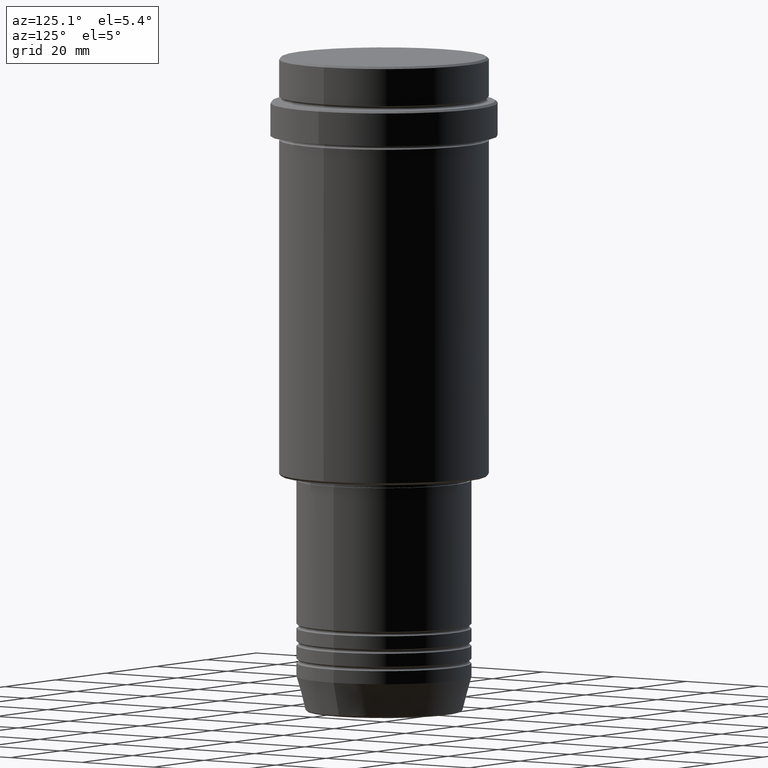
[diagram: clean part render]
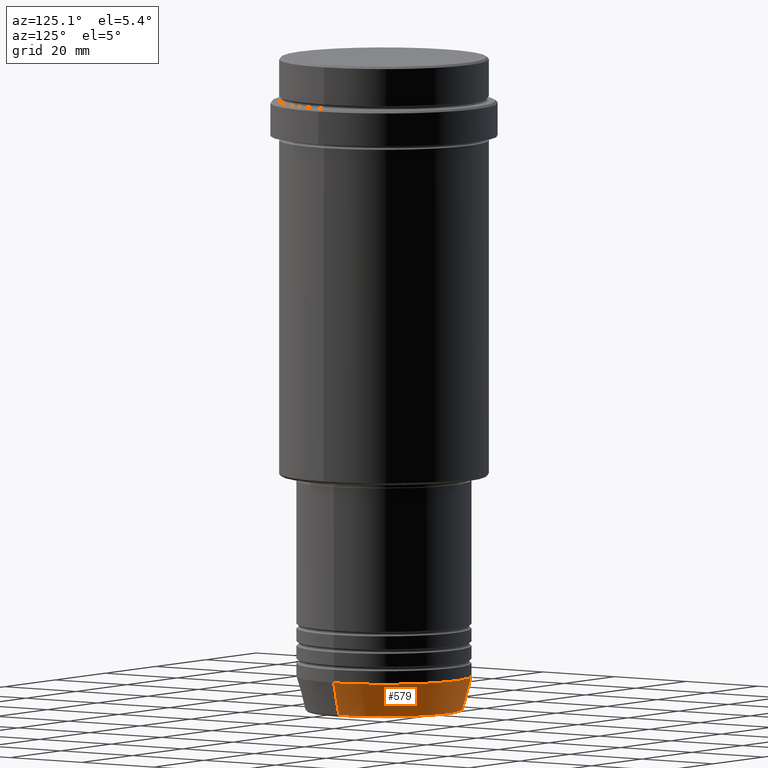
[diagram: same view with one face highlighted and labeled with its STEP entity id]
A machine part, auxiliary view. The second image highlights one B-rep face of the part: STEP entity #579.
In plain terms, the highlighted conical surface has half-angle 15 deg.
Its self-contained STEP definition (entity closure, byte-faithful):
#57 = LINE ( 'NONE', #175, #384 ) ;
#122 = CARTESIAN_POINT ( 'NONE',  ( -17.95570587970606979, 2.324116685748020582E-15, -149.6294095225512990 ) ) ;
#126 = LINE ( 'NONE', #421, #136 ) ;
#136 = VECTOR ( 'NONE', #317, 1000.000000000000114 ) ;
#175 = CARTESIAN_POINT ( 'NONE',  ( 20.00000000000000000, 0.000000000000000000, -142.0000000000000284 ) ) ;
#186 = DIRECTION ( 'NONE',  ( 0.2588190451025215721, 0.000000000000000000, 0.9659258262890679791 ) ) ;
#202 = AXIS2_PLACEMENT_3D ( 'NONE', #1005, #234, #443 ) ;
#205 = DIRECTION ( 'NONE',  ( -0.000000000000000000, -0.000000000000000000, 1.000000000000000000 ) ) ;
#227 = ORIENTED_EDGE ( 'NONE', *, *, #678, .T. ) ;
#229 = CARTESIAN_POINT ( 'NONE',  ( 0.000000000000000000, 0.000000000000000000, -142.0000000000000284 ) ) ;
#234 = DIRECTION ( 'NONE',  ( -0.000000000000000000, -0.000000000000000000, 1.000000000000000000 ) ) ;
#301 = DIRECTION ( 'NONE',  ( -0.000000000000000000, -0.000000000000000000, 1.000000000000000000 ) ) ;
#304 = VERTEX_POINT ( 'NONE', #122 ) ;
#317 = DIRECTION ( 'NONE',  ( -0.2588190451025215721, 3.169619151431775418E-17, 0.9659258262890679791 ) ) ;
#325 = DIRECTION ( 'NONE',  ( 1.000000000000000000, 0.000000000000000000, 0.000000000000000000 ) ) ;
#354 = AXIS2_PLACEMENT_3D ( 'NONE', #229, #205, #325 ) ;
#372 = ORIENTED_EDGE ( 'NONE', *, *, #1159, .F. ) ;
#384 = VECTOR ( 'NONE', #186, 1000.000000000000114 ) ;
#421 = CARTESIAN_POINT ( 'NONE',  ( -20.00000000000000000, 2.449293598294706513E-15, -142.0000000000000284 ) ) ;
#440 = FACE_OUTER_BOUND ( 'NONE', #1309, .T. ) ;
#443 = DIRECTION ( 'NONE',  ( 1.000000000000000000, 0.000000000000000000, 0.000000000000000000 ) ) ;
#457 = EDGE_CURVE ( 'NONE', #1004, #304, #1382, .T. ) ;
#466 = VERTEX_POINT ( 'NONE', #725 ) ;
#579 = ADVANCED_FACE ( 'NONE', ( #440 ), #961, .T. ) ;
#678 = EDGE_CURVE ( 'NONE', #304, #1107, #126, .T. ) ;
#703 = ORIENTED_EDGE ( 'NONE', *, *, #1401, .F. ) ;
#709 = DIRECTION ( 'NONE',  ( 1.000000000000000000, 0.000000000000000000, 0.000000000000000000 ) ) ;
#725 = CARTESIAN_POINT ( 'NONE',  ( 20.00000000000000000, 0.000000000000000000, -142.0000000000000284 ) ) ;
#961 = CONICAL_SURFACE ( 'NONE', #354, 20.00000000000000000, 0.2617993877991502960 ) ;
#992 = CIRCLE ( 'NONE', #202, 20.00000000000000000 ) ;
#997 = CARTESIAN_POINT ( 'NONE',  ( 17.95570587970606979, 0.000000000000000000, -149.6294095225512990 ) ) ;
#1004 = VERTEX_POINT ( 'NONE', #997 ) ;
#1005 = CARTESIAN_POINT ( 'NONE',  ( 0.000000000000000000, 0.000000000000000000, -142.0000000000000284 ) ) ;
#1107 = VERTEX_POINT ( 'NONE', #1142 ) ;
#1142 = CARTESIAN_POINT ( 'NONE',  ( -20.00000000000000000, 2.449293598294706513E-15, -142.0000000000000284 ) ) ;
#1159 = EDGE_CURVE ( 'NONE', #1004, #466, #57, .T. ) ;
#1174 = AXIS2_PLACEMENT_3D ( 'NONE', #1275, #301, #709 ) ;
#1220 = ORIENTED_EDGE ( 'NONE', *, *, #457, .T. ) ;
#1275 = CARTESIAN_POINT ( 'NONE',  ( 0.000000000000000000, 0.000000000000000000, -149.6294095225512990 ) ) ;
#1309 = EDGE_LOOP ( 'NONE', ( #1220, #227, #703, #372 ) ) ;
#1382 = CIRCLE ( 'NONE', #1174, 17.95570587970606979 ) ;
#1401 = EDGE_CURVE ( 'NONE', #466, #1107, #992, .T. ) ;